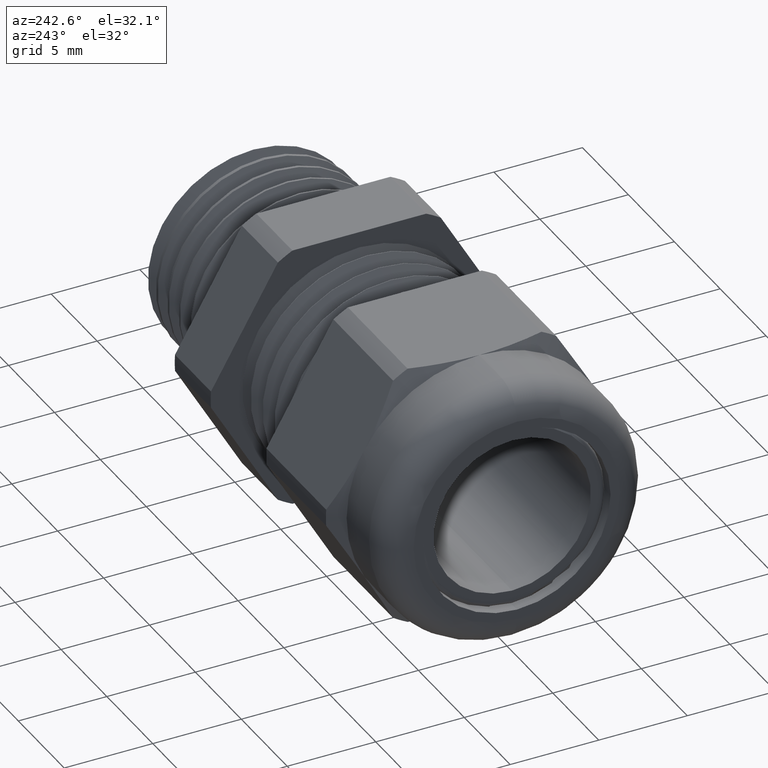
[diagram: clean part render]
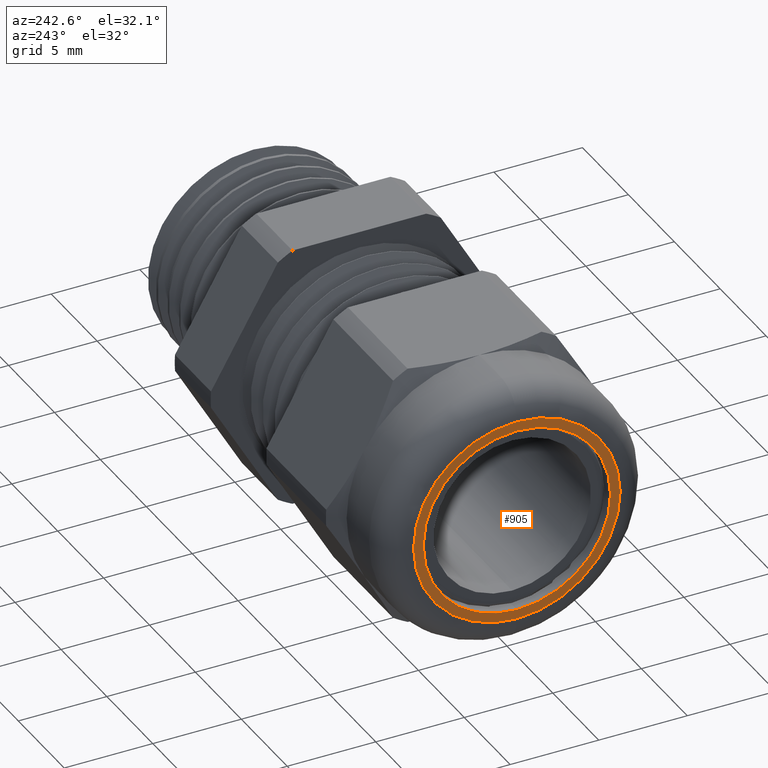
[diagram: same view with one face highlighted and labeled with its STEP entity id]
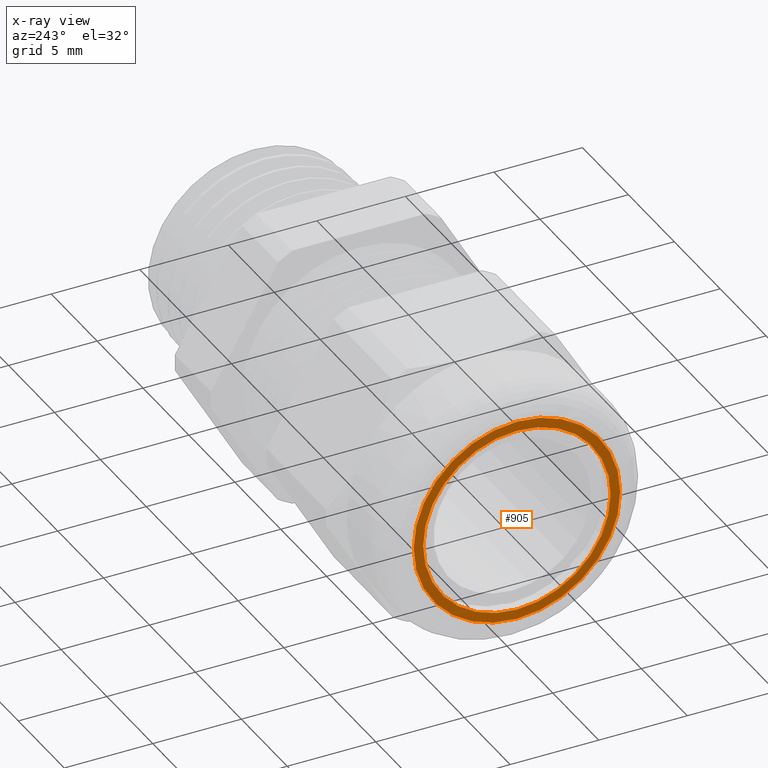
[diagram: x-ray of the same camera — body ghosted, the highlighted face saturated]
A machine part, auxiliary view. The second image highlights one B-rep face of the part: STEP entity #905.
The next image is the same camera in x-ray: the body ghosted, the highlighted face saturated — about 0% of this face is hidden behind the body in this view.
In plain terms, the highlighted planar face has unit normal (1, 0, 0).
Its self-contained STEP definition (entity closure, byte-faithful):
#782 = EDGE_CURVE ( 'NONE', #1024, #938, #2282, .T. ) ;
#876 = EDGE_CURVE ( 'NONE', #938, #1024, #2460, .T. ) ;
#879 = ORIENTED_EDGE ( 'NONE', *, *, #782, .F. ) ;
#892 = ORIENTED_EDGE ( 'NONE', *, *, #876, .F. ) ;
#893 = EDGE_LOOP ( 'NONE', ( #892, #879 ) ) ;
#896 = EDGE_LOOP ( 'NONE', ( #897, #898 ) ) ;
#897 = ORIENTED_EDGE ( 'NONE', *, *, #901, .T. ) ;
#898 = ORIENTED_EDGE ( 'NONE', *, *, #964, .T. ) ;
#901 = EDGE_CURVE ( 'NONE', #988, #973, #2439, .T. ) ;
#905 = ADVANCED_FACE ( 'NONE', ( #2499, #2498 ), #2497, .F. ) ;
#938 = VERTEX_POINT ( 'NONE', #2512 ) ;
#964 = EDGE_CURVE ( 'NONE', #973, #988, #2538, .T. ) ;
#973 = VERTEX_POINT ( 'NONE', #2586 ) ;
#988 = VERTEX_POINT ( 'NONE', #2615 ) ;
#1024 = VERTEX_POINT ( 'NONE', #2675 ) ;
#2277 = AXIS2_PLACEMENT_3D ( 'NONE', #2336, #2335, #2334 ) ;
#2282 = CIRCLE ( 'NONE', #2277, 0.2082500000000000200 ) ;
#2334 = DIRECTION ( 'NONE',  ( 0.0000000000000000000, 0.0000000000000000000, 1.000000000000000000 ) ) ;
#2335 = DIRECTION ( 'NONE',  ( -1.000000000000000000, 0.0000000000000000000, 0.0000000000000000000 ) ) ;
#2336 = CARTESIAN_POINT ( 'NONE',  ( -0.8300000000000001800, 0.0000000000000000000, 0.0000000000000000000 ) ) ;
#2436 = DIRECTION ( 'NONE',  ( -1.000000000000000000, 0.0000000000000000000, 0.0000000000000000000 ) ) ;
#2437 = CARTESIAN_POINT ( 'NONE',  ( -0.8300000000000001800, 0.0000000000000000000, 0.0000000000000000000 ) ) ;
#2438 = AXIS2_PLACEMENT_3D ( 'NONE', #2437, #2436, #2500 ) ;
#2439 = CIRCLE ( 'NONE', #2438, 0.2295999999999995500 ) ;
#2457 = DIRECTION ( 'NONE',  ( 0.0000000000000000000, 0.0000000000000000000, 1.000000000000000000 ) ) ;
#2458 = DIRECTION ( 'NONE',  ( -1.000000000000000000, 0.0000000000000000000, 0.0000000000000000000 ) ) ;
#2459 = AXIS2_PLACEMENT_3D ( 'NONE', #2465, #2458, #2457 ) ;
#2460 = CIRCLE ( 'NONE', #2459, 0.2082500000000000200 ) ;
#2465 = CARTESIAN_POINT ( 'NONE',  ( -0.8300000000000001800, 0.0000000000000000000, 0.0000000000000000000 ) ) ;
#2493 = DIRECTION ( 'NONE',  ( 0.0000000000000000000, 0.0000000000000000000, -1.000000000000000000 ) ) ;
#2494 = DIRECTION ( 'NONE',  ( 1.000000000000000000, 0.0000000000000000000, 0.0000000000000000000 ) ) ;
#2495 = CARTESIAN_POINT ( 'NONE',  ( -0.8300000000000001800, 0.2450000000000000000, 0.0000000000000000000 ) ) ;
#2496 = AXIS2_PLACEMENT_3D ( 'NONE', #2495, #2494, #2493 ) ;
#2497 = PLANE ( 'NONE',  #2496 ) ;
#2498 = FACE_BOUND ( 'NONE', #893, .T. ) ;
#2499 = FACE_OUTER_BOUND ( 'NONE', #896, .T. ) ;
#2500 = DIRECTION ( 'NONE',  ( 0.0000000000000000000, 0.0000000000000000000, -1.000000000000000000 ) ) ;
#2512 = CARTESIAN_POINT ( 'NONE',  ( -0.8300000000000001800, 0.0000000000000000000, 0.2082500000000000200 ) ) ;
#2534 = DIRECTION ( 'NONE',  ( 0.0000000000000000000, 0.0000000000000000000, -1.000000000000000000 ) ) ;
#2535 = DIRECTION ( 'NONE',  ( -1.000000000000000000, 0.0000000000000000000, 0.0000000000000000000 ) ) ;
#2536 = CARTESIAN_POINT ( 'NONE',  ( -0.8300000000000001800, 0.0000000000000000000, 0.0000000000000000000 ) ) ;
#2537 = AXIS2_PLACEMENT_3D ( 'NONE', #2536, #2535, #2534 ) ;
#2538 = CIRCLE ( 'NONE', #2537, 0.2295999999999995500 ) ;
#2586 = CARTESIAN_POINT ( 'NONE',  ( -0.8300000000000001800, 3.212248554163501700E-017, 0.2295999999999995500 ) ) ;
#2615 = CARTESIAN_POINT ( 'NONE',  ( -0.8300000000000001800, 0.0000000000000000000, -0.2295999999999995500 ) ) ;
#2675 = CARTESIAN_POINT ( 'NONE',  ( -0.8300000000000001800, 2.550326959224363300E-017, -0.2082500000000000200 ) ) ;